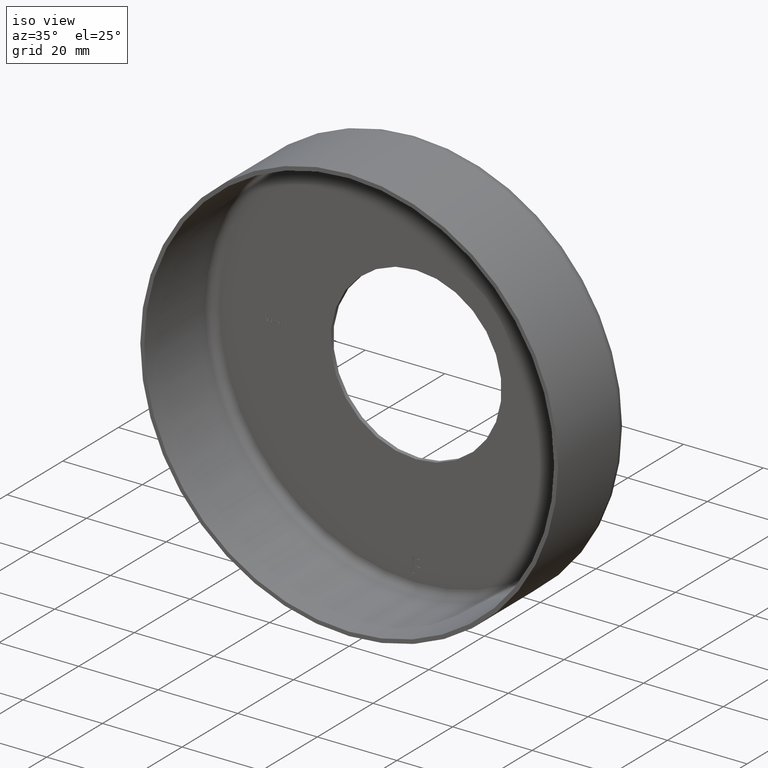
[diagram: clean part render]
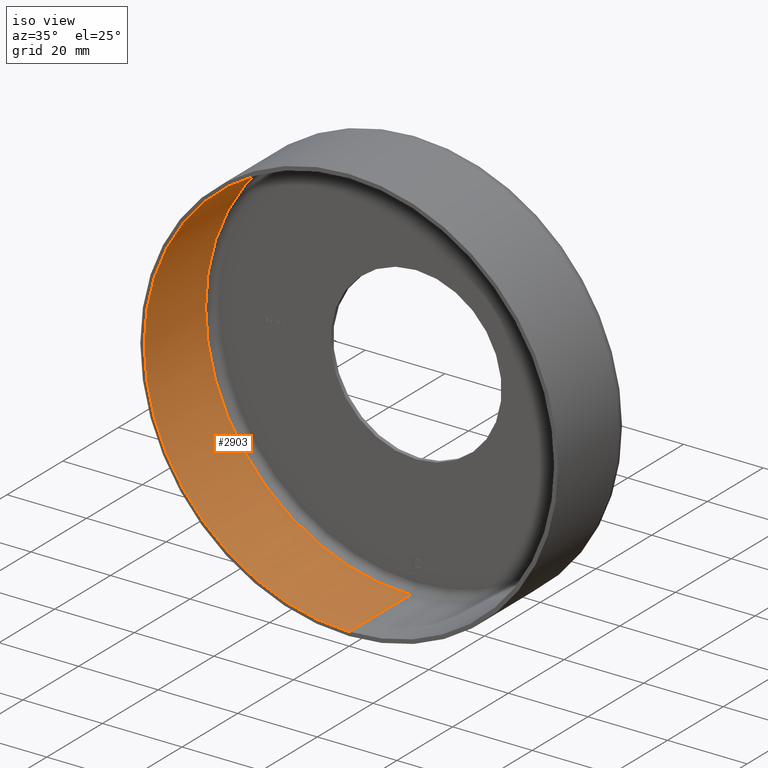
[diagram: same view with one face highlighted and labeled with its STEP entity id]
A machine part, iso view. The second image highlights one B-rep face of the part: STEP entity #2903.
In plain terms, the highlighted cylindrical surface (partial cylindrical patch) has radius 51.5 mm, axis along (-0, -1, -0).
Its self-contained STEP definition (entity closure, byte-faithful):
#405 = CARTESIAN_POINT ( 'NONE',  ( 0.000000000000000000, 22.00000000000000355, -51.50000000000000711 ) ) ;
#427 = ORIENTED_EDGE ( 'NONE', *, *, #12720, .T. ) ;
#896 = DIRECTION ( 'NONE',  ( -0.000000000000000000, -1.000000000000000000, -0.000000000000000000 ) ) ;
#936 = VERTEX_POINT ( 'NONE', #3078 ) ;
#1469 = EDGE_CURVE ( 'NONE', #11287, #12574, #10505, .T. ) ;
#1626 = LINE ( 'NONE', #10617, #10022 ) ;
#1658 = DIRECTION ( 'NONE',  ( 0.000000000000000000, 0.000000000000000000, -1.000000000000000000 ) ) ;
#2511 = DIRECTION ( 'NONE',  ( 0.000000000000000000, 0.000000000000000000, -1.000000000000000000 ) ) ;
#2807 = EDGE_LOOP ( 'NONE', ( #10720, #8685, #427, #13796 ) ) ;
#2903 = ADVANCED_FACE ( 'NONE', ( #9908 ), #9141, .F. ) ;
#3078 = CARTESIAN_POINT ( 'NONE',  ( 0.000000000000000000, -1.224646799147353207E-16, -51.50000000000000711 ) ) ;
#3557 = CIRCLE ( 'NONE', #13876, 51.50000000000000711 ) ;
#3912 = CARTESIAN_POINT ( 'NONE',  ( 6.306931015608869596E-15, 22.00000000000000355, 51.50000000000000711 ) ) ;
#4056 = CARTESIAN_POINT ( 'NONE',  ( 0.000000000000000000, -1.224646799147353207E-16, 0.000000000000000000 ) ) ;
#4813 = CARTESIAN_POINT ( 'NONE',  ( 0.000000000000000000, 22.00000000000000355, 0.000000000000000000 ) ) ;
#5300 = DIRECTION ( 'NONE',  ( -0.000000000000000000, -1.000000000000000000, -0.000000000000000000 ) ) ;
#5526 = DIRECTION ( 'NONE',  ( -0.000000000000000000, -1.000000000000000000, -0.000000000000000000 ) ) ;
#6372 = CIRCLE ( 'NONE', #8619, 51.50000000000000711 ) ;
#6535 = DIRECTION ( 'NONE',  ( 0.000000000000000000, 0.000000000000000000, -1.000000000000000000 ) ) ;
#6997 = EDGE_CURVE ( 'NONE', #11287, #10567, #3557, .T. ) ;
#7638 = DIRECTION ( 'NONE',  ( -0.000000000000000000, -1.000000000000000000, -0.000000000000000000 ) ) ;
#8579 = VECTOR ( 'NONE', #5526, 1000.000000000000000 ) ;
#8619 = AXIS2_PLACEMENT_3D ( 'NONE', #4056, #5300, #6535 ) ;
#8685 = ORIENTED_EDGE ( 'NONE', *, *, #1469, .T. ) ;
#8851 = DIRECTION ( 'NONE',  ( -0.000000000000000000, -1.000000000000000000, -0.000000000000000000 ) ) ;
#8941 = EDGE_CURVE ( 'NONE', #10567, #936, #1626, .T. ) ;
#9141 = CYLINDRICAL_SURFACE ( 'NONE', #9790, 51.50000000000000711 ) ;
#9790 = AXIS2_PLACEMENT_3D ( 'NONE', #10235, #8851, #1658 ) ;
#9908 = FACE_OUTER_BOUND ( 'NONE', #2807, .T. ) ;
#10022 = VECTOR ( 'NONE', #896, 1000.000000000000000 ) ;
#10235 = CARTESIAN_POINT ( 'NONE',  ( 0.000000000000000000, 0.000000000000000000, 0.000000000000000000 ) ) ;
#10505 = LINE ( 'NONE', #13989, #8579 ) ;
#10567 = VERTEX_POINT ( 'NONE', #405 ) ;
#10617 = CARTESIAN_POINT ( 'NONE',  ( 0.000000000000000000, 0.000000000000000000, -51.50000000000000711 ) ) ;
#10720 = ORIENTED_EDGE ( 'NONE', *, *, #6997, .F. ) ;
#11287 = VERTEX_POINT ( 'NONE', #3912 ) ;
#12574 = VERTEX_POINT ( 'NONE', #14733 ) ;
#12720 = EDGE_CURVE ( 'NONE', #12574, #936, #6372, .T. ) ;
#13796 = ORIENTED_EDGE ( 'NONE', *, *, #8941, .F. ) ;
#13876 = AXIS2_PLACEMENT_3D ( 'NONE', #4813, #7638, #2511 ) ;
#13989 = CARTESIAN_POINT ( 'NONE',  ( 6.306931015608869596E-15, 0.000000000000000000, 51.50000000000000711 ) ) ;
#14733 = CARTESIAN_POINT ( 'NONE',  ( 6.306931015608869596E-15, -1.224646799147353207E-16, 51.50000000000000711 ) ) ;